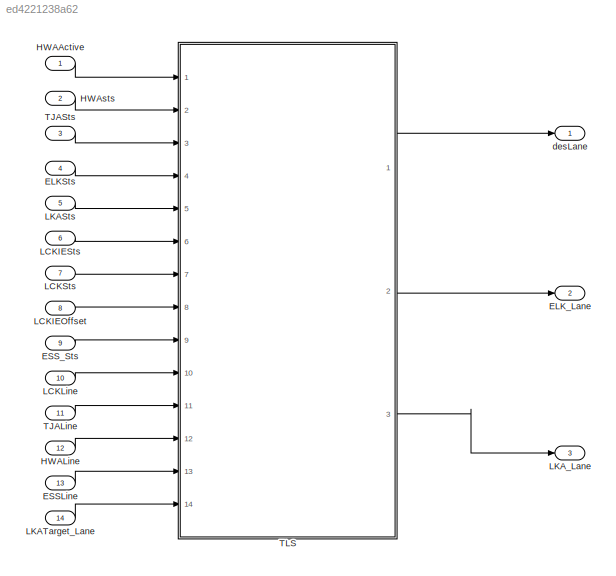
MODEL slx_ed4221238a62
KIND model
CONFIG AbsTol = auto
CONFIG EnableMultiTasking = off
CONFIG FixedStep = auto
CONFIG InitFcn = , if any(exist('dsmpb_private', 'file') ~= 0), dsmpb_private('dsmpb_mdlclblib', 'Init', bdroot); end,\n
CONFIG MaxStep = auto
CONFIG MinStep = auto
CONFIG PostLoadFcn = if any(exist('dsrtsu_mdlpostloadfcn', 'file') ~= 0), dsrtsu_mdlpostloadfcn('Execute', bdroot); end
CONFIG RelTol = 1e-3
CONFIG SampleTimeConstraint = Unconstrained
CONFIG SolverName = FixedStepAuto
CONFIG StartTime = 0.0
CONFIG StopTime = Inf
BLOCK [Inport] ELKSts 
  OutDataTypeStr = Enum: ELKSTATE
  Port = 4
BLOCK [Outport] ELK_Lane
  OutDataTypeStr = Bus: TLS_ELKLane
  Port = 2
BLOCK [Inport] ESSLine
  OutDataTypeStr = Bus: LSM_ESS_BUS
  Port = 13
BLOCK [Inport] ESS_Sts 
  Port = 9
BLOCK [Inport] HWAActive
BLOCK [Inport] HWALine
  OutDataTypeStr = Bus: LSM_HWA_BUS
  Port = 12
BLOCK [Inport] HWAsts
  OutDataTypeStr = Enum: HWA_STATE
  Port = 2
BLOCK [Inport] LCKIEOffset
  Port = 8
BLOCK [Inport] LCKIESts
  OutDataTypeStr = Enum: STATE
  Port = 6
BLOCK [Inport] LCKLine
  OutDataTypeStr = Bus: LSM_LCK_BUS
  Port = 10
BLOCK [Inport] LCKSts
  OutDataTypeStr = Enum: LCK_STATE
  Port = 7
BLOCK [Inport] LKASts
  OutDataTypeStr = Enum: STATE
  Port = 5
BLOCK [Inport] LKATarget_Lane 
  OutDataTypeStr = Bus: LaneARe_SP
  Port = 14
BLOCK [Outport] LKA_Lane
  OutDataTypeStr = Bus: TLS_LKALane
  Port = 3
BLOCK [Inport] TJALine
  OutDataTypeStr = Bus: LSM_TJA_ICA_BUS
  Port = 11
BLOCK [Inport] TJASts
  OutDataTypeStr = Enum: TJA_STATE
  Port = 3
BLOCK [SubSystem] TLS
  Ports = [14, 3]
  ReferencedSubsystem = SubSystem_VSM_TLS
  RequestExecContextInheritance = off
BLOCK [Outport] desLane
  OutDataTypeStr = Bus: TLS_DesLane
LINE ELKSts :1 -> TLS:4
LINE ESSLine:1 -> TLS:13
LINE ESS_Sts :1 -> TLS:9
LINE HWAActive:1 -> TLS:1
LINE HWALine:1 -> TLS:12
LINE HWAsts:1 -> TLS:2
LINE LCKIEOffset:1 -> TLS:8
LINE LCKIESts:1 -> TLS:6
LINE LCKLine:1 -> TLS:10
LINE LCKSts:1 -> TLS:7
LINE LKASts:1 -> TLS:5
LINE LKATarget_Lane :1 -> TLS:14
LINE TJALine:1 -> TLS:11
LINE TJASts:1 -> TLS:3
LINE TLS:1 -> desLane:1
LINE TLS:2 -> ELK_Lane:1
LINE TLS:3 -> LKA_Lane:1
